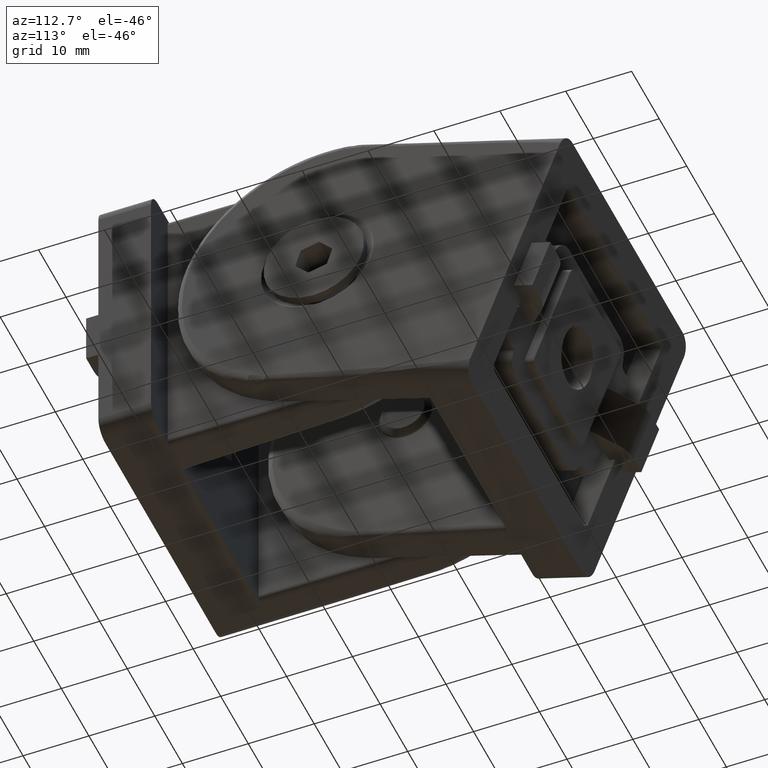
[diagram: clean part render]
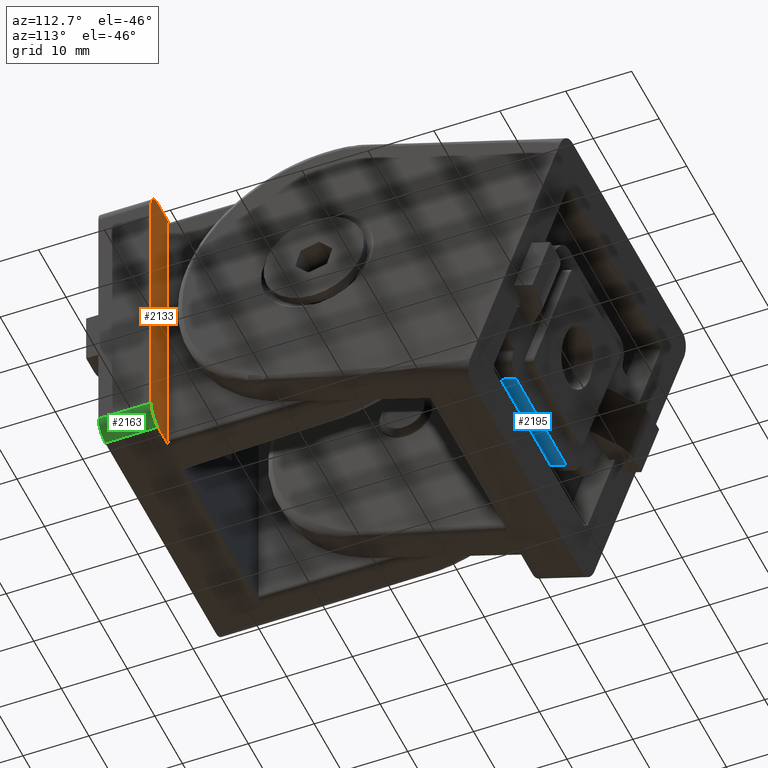
[diagram: same view with three faces highlighted in distinct colors, each labeled with its STEP entity id]
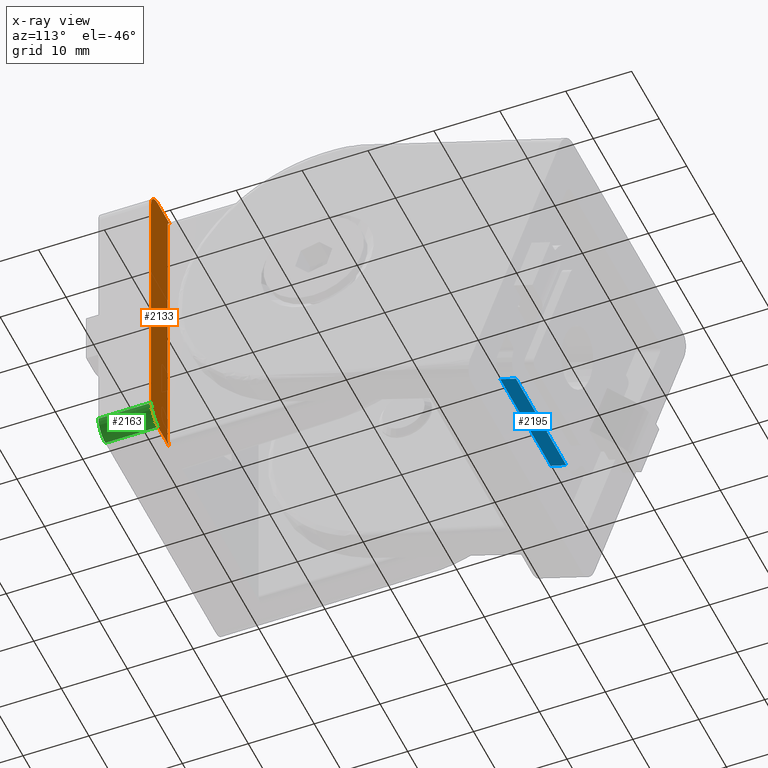
[diagram: x-ray of the same camera — body ghosted, the three highlighted faces saturated]
A machine part, auxiliary view with three faces highlighted in distinct colors.
The next image is the same camera in x-ray (body ghosted, the three faces saturated) — at least one of them is partly hidden behind the body in this view.
Their STEP definitions:

[orange] entity #2133 — the highlighted planar face has unit normal (0, -1, 0).
#50=LINE('',#3275,#240);
#54=LINE('',#3287,#244);
#55=LINE('',#3291,#245);
#56=LINE('',#3294,#246);
#240=VECTOR('',#2503,40.);
#244=VECTOR('',#2513,4.50003807838572);
#245=VECTOR('',#2516,43.);
#246=VECTOR('',#2519,4.50003807838574);
#431=PLANE('',#2270);
#519=ELLIPSE('',#2273,1.00003807838574,1.);
#520=ELLIPSE('',#2274,1.00003807838574,1.);
#577=FACE_OUTER_BOUND('',#705,.T.);
#705=EDGE_LOOP('',(#1500,#1501,#1502,#1503,#1504,#1505,#1506,#1507));
#857=CIRCLE('',#2271,2.5);
#858=CIRCLE('',#2272,2.5);
#969=VERTEX_POINT('',#3273);
#970=VERTEX_POINT('',#3274);
#973=VERTEX_POINT('',#3282);
#974=VERTEX_POINT('',#3284);
#975=VERTEX_POINT('',#3286);
#976=VERTEX_POINT('',#3288);
#977=VERTEX_POINT('',#3290);
#978=VERTEX_POINT('',#3292);
#1179=EDGE_CURVE('',#969,#970,#50,.T.);
#1183=EDGE_CURVE('',#969,#973,#857,.T.);
#1184=EDGE_CURVE('',#974,#970,#858,.T.);
#1185=EDGE_CURVE('',#974,#975,#54,.T.);
#1186=EDGE_CURVE('',#975,#976,#519,.T.);
#1187=EDGE_CURVE('',#977,#976,#55,.T.);
#1188=EDGE_CURVE('',#977,#978,#520,.T.);
#1189=EDGE_CURVE('',#973,#978,#56,.T.);
#1500=ORIENTED_EDGE('',*,*,#1183,.F.);
#1501=ORIENTED_EDGE('',*,*,#1179,.T.);
#1502=ORIENTED_EDGE('',*,*,#1184,.F.);
#1503=ORIENTED_EDGE('',*,*,#1185,.T.);
#1504=ORIENTED_EDGE('',*,*,#1186,.T.);
#1505=ORIENTED_EDGE('',*,*,#1187,.F.);
#1506=ORIENTED_EDGE('',*,*,#1188,.T.);
#1507=ORIENTED_EDGE('',*,*,#1189,.F.);
#2133=ADVANCED_FACE('',(#577),#431,.F.);
#2270=AXIS2_PLACEMENT_3D('',#3281,#2507,#2508);
#2271=AXIS2_PLACEMENT_3D('',#3283,#2509,#2510);
#2272=AXIS2_PLACEMENT_3D('',#3285,#2511,#2512);
#2273=AXIS2_PLACEMENT_3D('',#3289,#2514,#2515);
#2274=AXIS2_PLACEMENT_3D('',#3293,#2517,#2518);
#2503=DIRECTION('',(0.,0.,-1.));
#2507=DIRECTION('center_axis',(0.,-1.,0.));
#2508=DIRECTION('ref_axis',(0.,0.,-1.));
#2509=DIRECTION('center_axis',(0.,-1.,0.));
#2510=DIRECTION('ref_axis',(0.,0.,-1.));
#2511=DIRECTION('center_axis',(0.,-1.,0.));
#2512=DIRECTION('ref_axis',(0.,0.,-1.));
#2513=DIRECTION('',(-1.,0.,0.));
#2514=DIRECTION('center_axis',(0.,-1.,0.));
#2515=DIRECTION('ref_axis',(1.,0.,0.));
#2516=DIRECTION('',(0.,0.,-1.));
#2517=DIRECTION('center_axis',(0.,-1.,0.));
#2518=DIRECTION('ref_axis',(-1.,0.,0.));
#2519=DIRECTION('',(-1.,0.,0.));
#3273=CARTESIAN_POINT('',(22.5,8.,42.5));
#3274=CARTESIAN_POINT('',(22.5,8.,2.50000000000002));
#3275=CARTESIAN_POINT('',(22.5,8.,45.));
#3281=CARTESIAN_POINT('Origin',(22.5,8.,45.));
#3282=CARTESIAN_POINT('',(20.,8.,45.));
#3283=CARTESIAN_POINT('Origin',(20.,8.,42.5));
#3284=CARTESIAN_POINT('',(20.,8.,0.));
#3285=CARTESIAN_POINT('Origin',(20.,8.,2.5));
#3286=CARTESIAN_POINT('',(15.4999619216143,8.,0.));
#3287=CARTESIAN_POINT('',(22.5,8.,0.));
#3288=CARTESIAN_POINT('',(16.5,8.,1.00000000000001));
#3289=CARTESIAN_POINT('Origin',(15.4999619216143,8.,1.));
#3290=CARTESIAN_POINT('',(16.5,8.,44.));
#3291=CARTESIAN_POINT('',(16.5,8.,45.));
#3292=CARTESIAN_POINT('',(15.4999619216143,8.,45.));
#3293=CARTESIAN_POINT('Origin',(15.4999619216143,8.,44.));
#3294=CARTESIAN_POINT('',(22.5,8.,45.));

[blue] entity #2195 — the highlighted planar face has unit normal (0, 0.3387, 0.9409).
#148=LINE('',#4381,#338);
#166=LINE('',#4444,#356);
#178=LINE('',#4499,#368);
#179=LINE('',#4500,#369);
#338=VECTOR('',#2793,18.2540333075852);
#356=VECTOR('',#2841,18.2540333075852);
#368=VECTOR('',#2887,2.5);
#369=VECTOR('',#2888,2.5);
#461=PLANE('',#2397);
#639=FACE_OUTER_BOUND('',#778,.T.);
#778=EDGE_LOOP('',(#1882,#1883,#1884,#1885));
#1077=VERTEX_POINT('',#4378);
#1078=VERTEX_POINT('',#4380);
#1107=VERTEX_POINT('',#4442);
#1108=VERTEX_POINT('',#4443);
#1343=EDGE_CURVE('',#1077,#1078,#148,.T.);
#1375=EDGE_CURVE('',#1107,#1108,#166,.T.);
#1403=EDGE_CURVE('',#1077,#1107,#178,.T.);
#1404=EDGE_CURVE('',#1108,#1078,#179,.T.);
#1882=ORIENTED_EDGE('',*,*,#1343,.F.);
#1883=ORIENTED_EDGE('',*,*,#1403,.T.);
#1884=ORIENTED_EDGE('',*,*,#1375,.T.);
#1885=ORIENTED_EDGE('',*,*,#1404,.T.);
#2195=ADVANCED_FACE('',(#639),#461,.F.);
#2397=AXIS2_PLACEMENT_3D('',#4498,#2885,#2886);
#2793=DIRECTION('',(-1.,-1.44560289664734E-16,0.));
#2841=DIRECTION('',(-1.,-1.44560289664734E-16,0.));
#2885=DIRECTION('center_axis',(1.44560289664734E-16,-1.,0.));
#2886=DIRECTION('ref_axis',(1.,0.,0.));
#2887=DIRECTION('',(0.,0.,-1.));
#2888=DIRECTION('',(0.,0.,1.));
#4378=CARTESIAN_POINT('',(9.12701665379259,12.,2.5));
#4380=CARTESIAN_POINT('',(-9.12701665379258,12.,2.5));
#4381=CARTESIAN_POINT('',(-12.,12.,2.5));
#4442=CARTESIAN_POINT('',(9.12701665379259,12.,0.));
#4443=CARTESIAN_POINT('',(-9.12701665379258,12.,0.));
#4444=CARTESIAN_POINT('',(-12.,12.,0.));
#4498=CARTESIAN_POINT('Origin',(-12.,12.,2.5));
#4499=CARTESIAN_POINT('',(9.12701665379259,12.,2.5));
#4500=CARTESIAN_POINT('',(-9.12701665379258,12.,2.5));

[green] entity #2163 — the highlighted cylindrical surface (edge-blend (fillet) strip) has radius 2.5 mm, axis along (0, -1, 0).
#53=LINE('',#3280,#243);
#74=LINE('',#3348,#264);
#243=VECTOR('',#2506,8.);
#264=VECTOR('',#2563,8.);
#532=CYLINDRICAL_SURFACE('',#2330,2.5);
#607=FACE_OUTER_BOUND('',#743,.T.);
#743=EDGE_LOOP('',(#1693,#1694,#1695,#1696));
#858=CIRCLE('',#2272,2.5);
#861=CIRCLE('',#2278,2.5);
#970=VERTEX_POINT('',#3274);
#972=VERTEX_POINT('',#3278);
#974=VERTEX_POINT('',#3284);
#982=VERTEX_POINT('',#3301);
#1182=EDGE_CURVE('',#970,#972,#53,.T.);
#1184=EDGE_CURVE('',#974,#970,#858,.T.);
#1193=EDGE_CURVE('',#982,#972,#861,.T.);
#1217=EDGE_CURVE('',#974,#982,#74,.T.);
#1693=ORIENTED_EDGE('',*,*,#1184,.T.);
#1694=ORIENTED_EDGE('',*,*,#1182,.T.);
#1695=ORIENTED_EDGE('',*,*,#1193,.F.);
#1696=ORIENTED_EDGE('',*,*,#1217,.F.);
#2163=ADVANCED_FACE('',(#607),#532,.T.);
#2272=AXIS2_PLACEMENT_3D('',#3285,#2511,#2512);
#2278=AXIS2_PLACEMENT_3D('',#3303,#2527,#2528);
#2330=AXIS2_PLACEMENT_3D('',#3818,#2707,#2708);
#2506=DIRECTION('',(0.,-1.,0.));
#2511=DIRECTION('center_axis',(0.,-1.,0.));
#2512=DIRECTION('ref_axis',(0.,0.,-1.));
#2527=DIRECTION('center_axis',(0.,-1.,0.));
#2528=DIRECTION('ref_axis',(0.,0.,1.));
#2563=DIRECTION('',(0.,-1.,0.));
#2707=DIRECTION('center_axis',(0.,-1.,0.));
#2708=DIRECTION('ref_axis',(0.,0.,-1.));
#3274=CARTESIAN_POINT('',(22.5,8.,2.50000000000002));
#3278=CARTESIAN_POINT('',(22.5,0.,2.50000000000002));
#3280=CARTESIAN_POINT('',(22.5,54.,2.50000000000002));
#3284=CARTESIAN_POINT('',(20.,8.,0.));
#3285=CARTESIAN_POINT('Origin',(20.,8.,2.5));
#3301=CARTESIAN_POINT('',(20.,0.,0.));
#3303=CARTESIAN_POINT('Origin',(20.,0.,2.5));
#3348=CARTESIAN_POINT('',(20.,54.,0.));
#3818=CARTESIAN_POINT('Origin',(20.,54.,2.5));